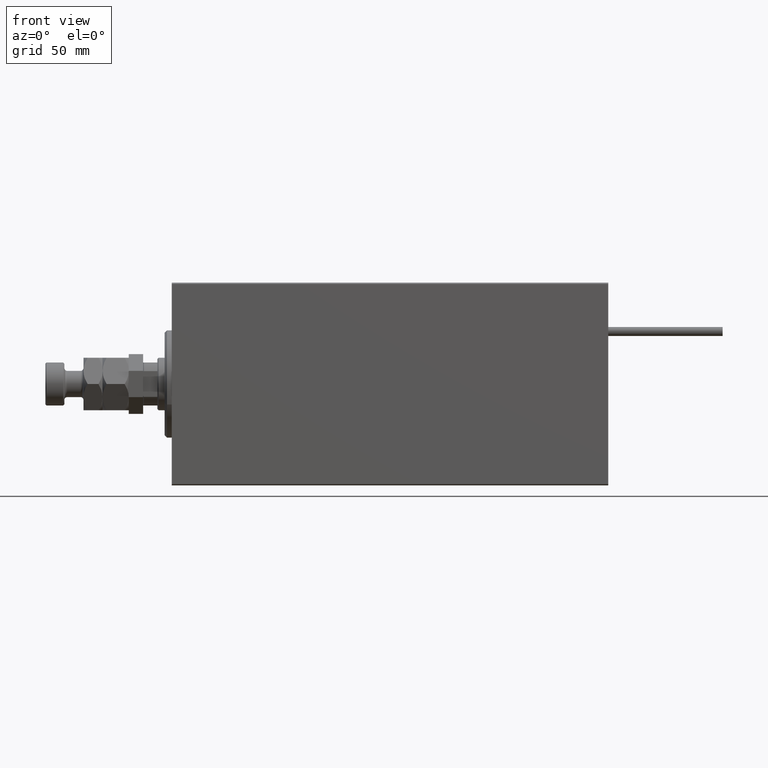
[diagram: clean part render]
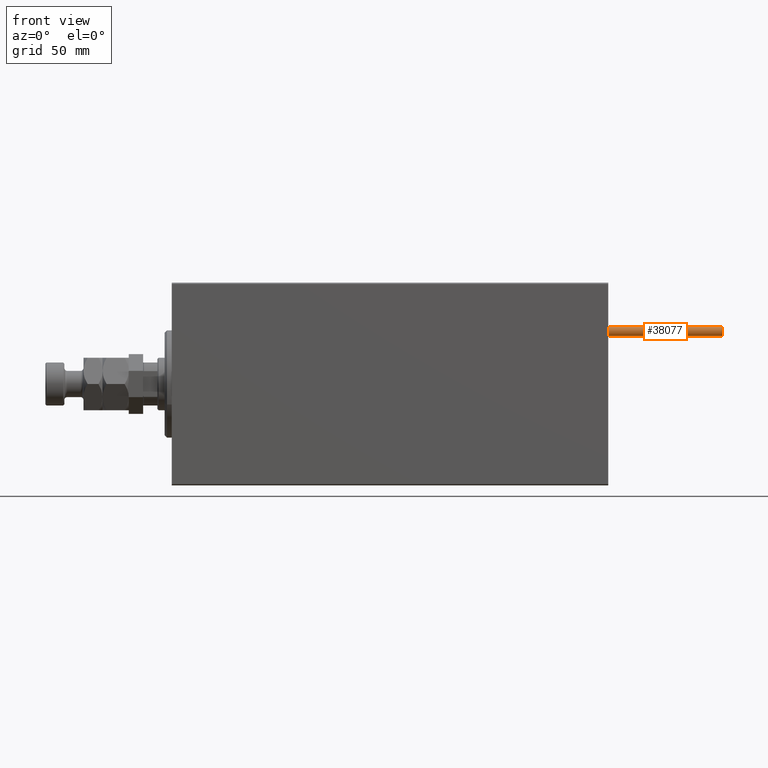
[diagram: same view with one face highlighted and labeled with its STEP entity id]
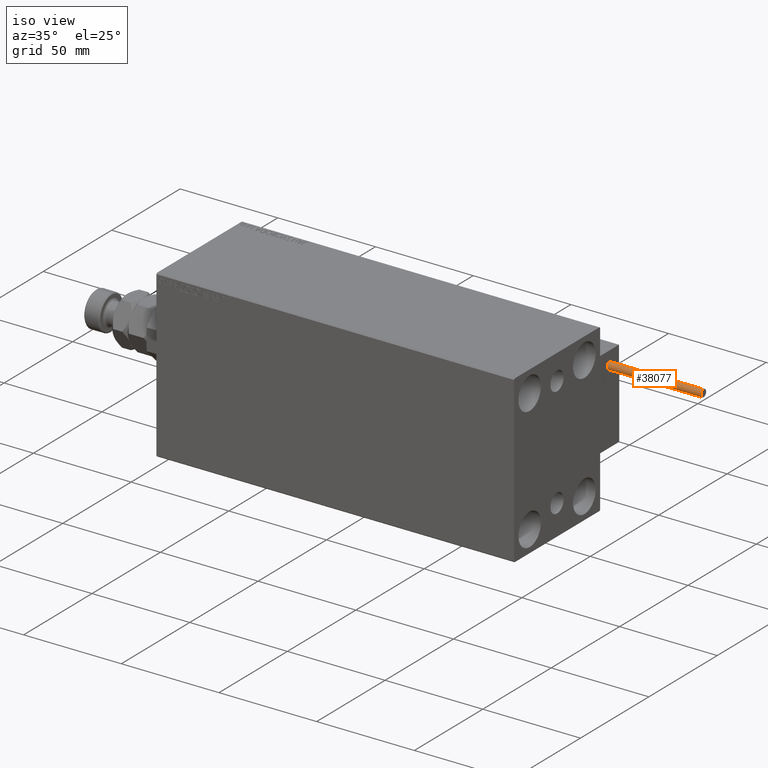
[diagram: same view with one face highlighted and labeled with its STEP entity id]
A machine part, front view. The second image highlights one B-rep face of the part: STEP entity #38077.
A second angle (iso view) of the same face is appended — the face is thin or edge-on in the first view.
In plain terms, the highlighted cylindrical surface (edge-blend (fillet) strip) has radius 1.9 mm, axis along (-1, -0, 0).
Its self-contained STEP definition (entity closure, byte-faithful):
#2633 = CARTESIAN_POINT ( 'NONE',  ( 0.000000000000000000, 0.000000000000000000, 48.00000000000000000 ) ) ;
#3655 = ORIENTED_EDGE ( 'NONE', *, *, #28525, .F. ) ;
#5750 = LINE ( 'NONE', #13593, #49245 ) ;
#9112 = CARTESIAN_POINT ( 'NONE',  ( 1.899999999999999467, 2.326828918379970872E-16, 48.00000000000000000 ) ) ;
#10978 = VERTEX_POINT ( 'NONE', #47045 ) ;
#11820 = DIRECTION ( 'NONE',  ( 0.000000000000000000, 0.000000000000000000, 1.000000000000000000 ) ) ;
#12379 = CIRCLE ( 'NONE', #41613, 1.899999999999999467 ) ;
#12777 = LINE ( 'NONE', #9112, #26531 ) ;
#12844 = DIRECTION ( 'NONE',  ( 1.000000000000000000, 0.000000000000000000, 0.000000000000000000 ) ) ;
#13593 = CARTESIAN_POINT ( 'NONE',  ( -1.899999999999999467, 0.000000000000000000, 48.00000000000000000 ) ) ;
#14410 = FACE_OUTER_BOUND ( 'NONE', #48577, .T. ) ;
#14666 = DIRECTION ( 'NONE',  ( -1.000000000000000000, 0.000000000000000000, 0.000000000000000000 ) ) ;
#15448 = AXIS2_PLACEMENT_3D ( 'NONE', #48683, #11820, #12844 ) ;
#15892 = EDGE_CURVE ( 'NONE', #27260, #23175, #34668, .T. ) ;
#20769 = CARTESIAN_POINT ( 'NONE',  ( 1.899999999999999467, 2.326828918379970872E-16, 48.00000000000000000 ) ) ;
#22653 = EDGE_CURVE ( 'NONE', #41488, #23175, #12777, .T. ) ;
#23175 = VERTEX_POINT ( 'NONE', #31739 ) ;
#26318 = ORIENTED_EDGE ( 'NONE', *, *, #45366, .T. ) ;
#26531 = VECTOR ( 'NONE', #32694, 1000.000000000000000 ) ;
#27260 = VERTEX_POINT ( 'NONE', #33704 ) ;
#28525 = EDGE_CURVE ( 'NONE', #10978, #41488, #12379, .T. ) ;
#30386 = DIRECTION ( 'NONE',  ( -0.000000000000000000, -0.000000000000000000, -1.000000000000000000 ) ) ;
#31739 = CARTESIAN_POINT ( 'NONE',  ( 1.899999999999999467, 2.326828918379970872E-16, 0.000000000000000000 ) ) ;
#32221 = DIRECTION ( 'NONE',  ( 1.000000000000000000, 0.000000000000000000, 0.000000000000000000 ) ) ;
#32694 = DIRECTION ( 'NONE',  ( -0.000000000000000000, -0.000000000000000000, -1.000000000000000000 ) ) ;
#33704 = CARTESIAN_POINT ( 'NONE',  ( -1.899999999999999467, 0.000000000000000000, 0.000000000000000000 ) ) ;
#34668 = CIRCLE ( 'NONE', #15448, 1.899999999999999467 ) ;
#37606 = ORIENTED_EDGE ( 'NONE', *, *, #15892, .T. ) ;
#38077 = ADVANCED_FACE ( 'NONE', ( #14410 ), #50510, .T. ) ;
#40067 = DIRECTION ( 'NONE',  ( 0.000000000000000000, 0.000000000000000000, 1.000000000000000000 ) ) ;
#40757 = ORIENTED_EDGE ( 'NONE', *, *, #22653, .F. ) ;
#41488 = VERTEX_POINT ( 'NONE', #20769 ) ;
#41613 = AXIS2_PLACEMENT_3D ( 'NONE', #44739, #40067, #32221 ) ;
#44739 = CARTESIAN_POINT ( 'NONE',  ( 0.000000000000000000, 0.000000000000000000, 48.00000000000000000 ) ) ;
#45025 = DIRECTION ( 'NONE',  ( -0.000000000000000000, -0.000000000000000000, -1.000000000000000000 ) ) ;
#45366 = EDGE_CURVE ( 'NONE', #10978, #27260, #5750, .T. ) ;
#46984 = AXIS2_PLACEMENT_3D ( 'NONE', #2633, #30386, #14666 ) ;
#47045 = CARTESIAN_POINT ( 'NONE',  ( -1.899999999999999467, 0.000000000000000000, 48.00000000000000000 ) ) ;
#48577 = EDGE_LOOP ( 'NONE', ( #40757, #3655, #26318, #37606 ) ) ;
#48683 = CARTESIAN_POINT ( 'NONE',  ( 0.000000000000000000, 0.000000000000000000, 0.000000000000000000 ) ) ;
#49245 = VECTOR ( 'NONE', #45025, 1000.000000000000000 ) ;
#50510 = CYLINDRICAL_SURFACE ( 'NONE', #46984, 1.899999999999999467 ) ;